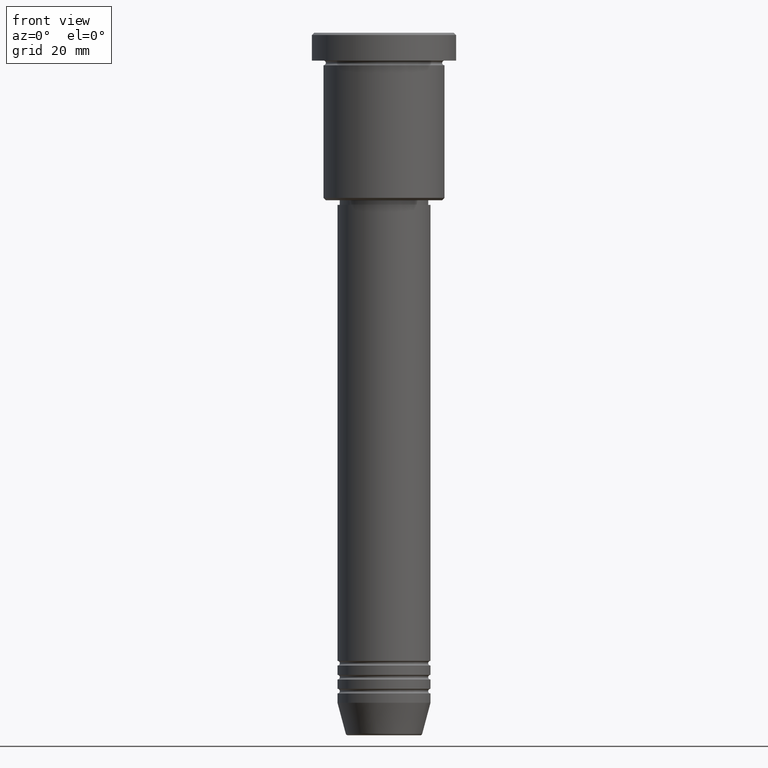
[diagram: clean part render]
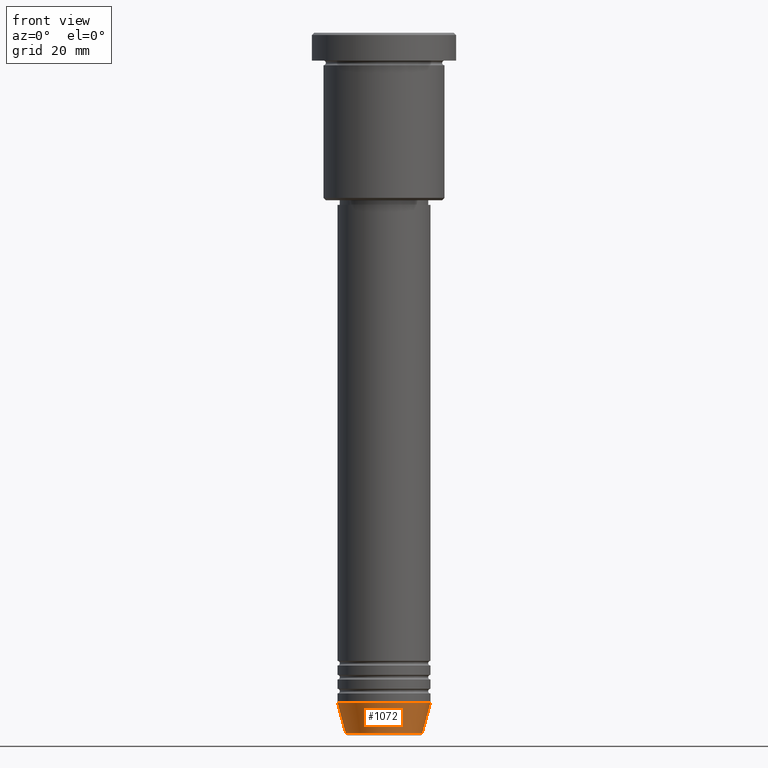
[diagram: same view with one face highlighted and labeled with its STEP entity id]
A machine part, front view. The second image highlights one B-rep face of the part: STEP entity #1072.
In plain terms, the highlighted conical surface has half-angle 15 deg.
Its self-contained STEP definition (entity closure, byte-faithful):
#6 = VERTEX_POINT ( 'NONE', #714 ) ;
#40 = VERTEX_POINT ( 'NONE', #873 ) ;
#71 = ORIENTED_EDGE ( 'NONE', *, *, #775, .T. ) ;
#98 = DIRECTION ( 'NONE',  ( -0.000000000000000000, -0.000000000000000000, 1.000000000000000000 ) ) ;
#108 = CARTESIAN_POINT ( 'NONE',  ( 0.000000000000000000, 0.000000000000000000, -144.0000000000000284 ) ) ;
#116 = CARTESIAN_POINT ( 'NONE',  ( -10.00000000000000000, 1.224646799147353256E-15, -144.0000000000000284 ) ) ;
#120 = EDGE_CURVE ( 'NONE', #6, #40, #638, .T. ) ;
#138 = ORIENTED_EDGE ( 'NONE', *, *, #881, .T. ) ;
#192 = VECTOR ( 'NONE', #971, 1000.000000000000000 ) ;
#212 = VERTEX_POINT ( 'NONE', #1006 ) ;
#288 = CIRCLE ( 'NONE', #1058, 8.223655072137191269 ) ;
#318 = CARTESIAN_POINT ( 'NONE',  ( 10.00000000000000000, 0.000000000000000000, -144.0000000000000284 ) ) ;
#336 = CARTESIAN_POINT ( 'NONE',  ( -8.223655072137191269, 1.115877042642912054E-15, -150.6294095225512706 ) ) ;
#374 = DIRECTION ( 'NONE',  ( 1.000000000000000000, 0.000000000000000000, 0.000000000000000000 ) ) ;
#395 = LINE ( 'NONE', #116, #192 ) ;
#431 = DIRECTION ( 'NONE',  ( -0.000000000000000000, -0.000000000000000000, 1.000000000000000000 ) ) ;
#457 = AXIS2_PLACEMENT_3D ( 'NONE', #525, #431, #694 ) ;
#490 = ORIENTED_EDGE ( 'NONE', *, *, #120, .F. ) ;
#498 = CONICAL_SURFACE ( 'NONE', #457, 10.00000000000000000, 0.2617993877991500740 ) ;
#525 = CARTESIAN_POINT ( 'NONE',  ( 0.000000000000000000, 0.000000000000000000, -144.0000000000000284 ) ) ;
#567 = VERTEX_POINT ( 'NONE', #336 ) ;
#584 = EDGE_LOOP ( 'NONE', ( #975, #71, #138, #490 ) ) ;
#638 = CIRCLE ( 'NONE', #790, 10.00000000000000000 ) ;
#654 = CARTESIAN_POINT ( 'NONE',  ( 0.000000000000000000, 0.000000000000000000, -150.6294095225512706 ) ) ;
#694 = DIRECTION ( 'NONE',  ( 1.000000000000000000, 0.000000000000000000, 0.000000000000000000 ) ) ;
#714 = CARTESIAN_POINT ( 'NONE',  ( -10.00000000000000000, 1.224646799147353256E-15, -144.0000000000000284 ) ) ;
#727 = VECTOR ( 'NONE', #784, 1000.000000000000000 ) ;
#775 = EDGE_CURVE ( 'NONE', #567, #212, #288, .T. ) ;
#784 = DIRECTION ( 'NONE',  ( 0.2588190451025213501, 0.000000000000000000, 0.9659258262890680902 ) ) ;
#790 = AXIS2_PLACEMENT_3D ( 'NONE', #108, #1123, #1130 ) ;
#873 = CARTESIAN_POINT ( 'NONE',  ( 10.00000000000000000, 0.000000000000000000, -144.0000000000000284 ) ) ;
#881 = EDGE_CURVE ( 'NONE', #212, #40, #1099, .T. ) ;
#952 = EDGE_CURVE ( 'NONE', #567, #6, #395, .T. ) ;
#971 = DIRECTION ( 'NONE',  ( -0.2588190451025213501, 3.169619151431772337E-17, 0.9659258262890680902 ) ) ;
#975 = ORIENTED_EDGE ( 'NONE', *, *, #952, .F. ) ;
#1006 = CARTESIAN_POINT ( 'NONE',  ( 8.223655072137191269, 0.000000000000000000, -150.6294095225512706 ) ) ;
#1058 = AXIS2_PLACEMENT_3D ( 'NONE', #654, #98, #374 ) ;
#1072 = ADVANCED_FACE ( 'NONE', ( #1148 ), #498, .T. ) ;
#1099 = LINE ( 'NONE', #318, #727 ) ;
#1123 = DIRECTION ( 'NONE',  ( -0.000000000000000000, -0.000000000000000000, 1.000000000000000000 ) ) ;
#1130 = DIRECTION ( 'NONE',  ( 1.000000000000000000, 0.000000000000000000, 0.000000000000000000 ) ) ;
#1148 = FACE_OUTER_BOUND ( 'NONE', #584, .T. ) ;